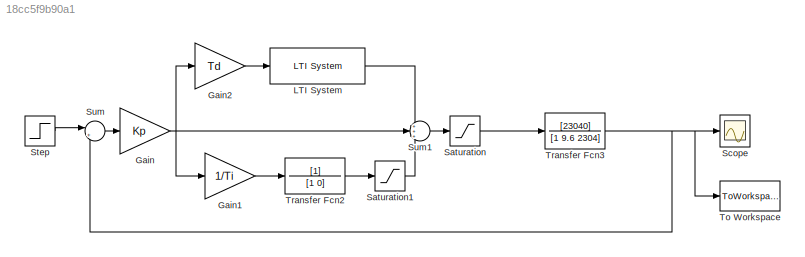
MODEL slx_18cc5f9b90a1
KIND model
CONFIG AbsTol = 1e-4
CONFIG EnableMultiTasking = off
CONFIG FixedStep = 1e-2
CONFIG MaxStep = auto
CONFIG MinStep = auto
CONFIG RelTol = 1e-4
CONFIG SampleTimeConstraint = Unconstrained
CONFIG SolverName = ode45
CONFIG StartTime = 0.0
CONFIG StopTime = 10.0
BLOCK [Gain] Gain
  Gain = Kp
BLOCK [Gain] Gain1
  Gain = 1/Ti
BLOCK [Gain] Gain2
  Gain = Td
BLOCK [Reference] LTI System  REF=cstblocks/LTI System
  SourceBlock = cstblocks/LTI System
  SourceType = LTI Block
BLOCK [Saturate] Saturation
  LowerLimit = -4
  UpperLimit = 4
BLOCK [Saturate] Saturation1
  LowerLimit = -4
  UpperLimit = 4
BLOCK [Scope] Scope
  Floating = off
  NumInputPorts = 1
  ScopeSpecificationString = Simulink.scopes.TimeScopeBlockCfg('CurrentConfiguration', extmgr.ConfigurationSet(extmgr.Configuration('Core','General UI',true),extmgr.Configuration('Core','Source UI',true),extmgr.Configuration('Sources','WiredSimulink',true,'DataLoggingSaveFormat','StructureWithTime'),extmgr.Configuration('Visuals','Time Domain',true,'SerializedDisplays',{struct('MinYLimReal','-0.12302','MaxYLimReal','1.10717',...<+1494ch>
BLOCK [Step] Step
  SampleTime = 0
  Time = 0
BLOCK [Sum] Sum
  Inputs = |+-
BLOCK [Sum] Sum1
  Inputs = +++
BLOCK [ToWorkspace] To Workspace
  FixptAsFi = on
  MaxDataPoints = inf
  SampleTime = -1
  SaveFormat = Structure With Time
  VariableName = simout
BLOCK [TransferFcn] Transfer Fcn2
  Denominator = [1 0]
BLOCK [TransferFcn] Transfer Fcn3
  Denominator = [1 9.6 2304]
  Numerator = [23040]
LINE Gain1:1 -> Transfer Fcn2:1
LINE Gain2:1 -> LTI System:1
NET Gain:1 -> Gain1:1, Gain2:1, Sum1:2
LINE LTI System:1 -> Sum1:1
LINE Saturation1:1 -> Sum1:3
LINE Saturation:1 -> Transfer Fcn3:1
LINE Step:1 -> Sum:1
LINE Sum1:1 -> Saturation:1
LINE Sum:1 -> Gain:1
LINE Transfer Fcn2:1 -> Saturation1:1
NET Transfer Fcn3:1 -> Scope:1, Sum:2, To Workspace:1
note: NET lines group one-source signal fan-out (src -> all destinations, sorted); 1:1 wires keep LINE
